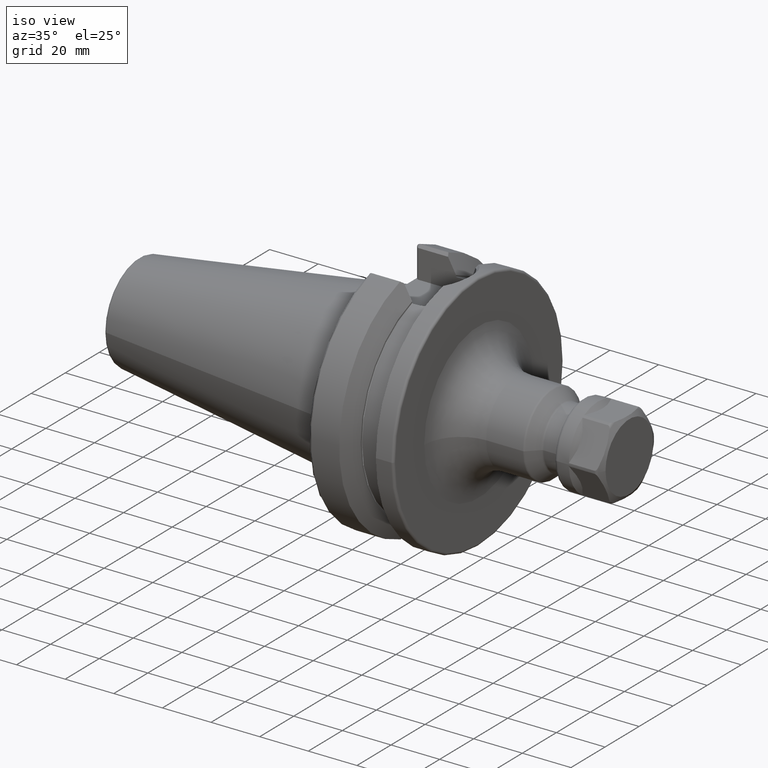
[diagram: clean part render]
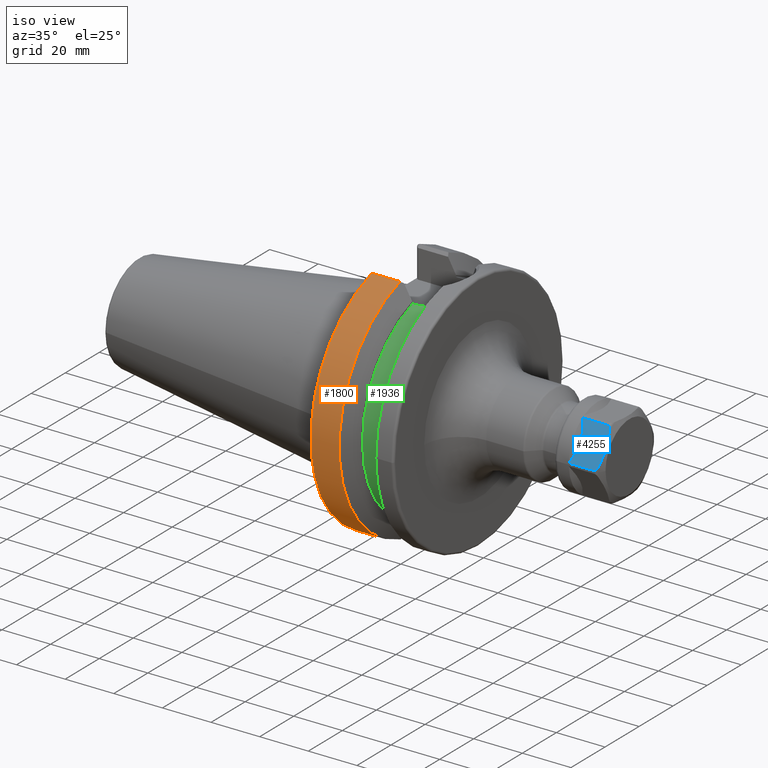
[diagram: same view with three faces highlighted in distinct colors, each labeled with its STEP entity id]
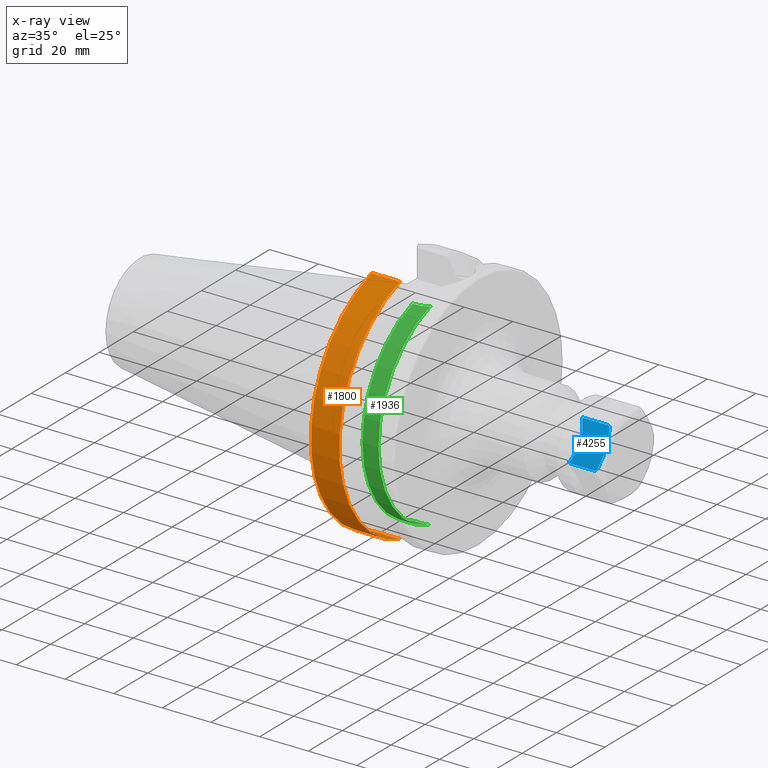
[diagram: x-ray of the same camera — body ghosted, the three highlighted faces saturated]
A machine part, iso view with three faces highlighted in distinct colors.
The next image is the same camera in x-ray (body ghosted, the three faces saturated) — at least one of them is partly hidden behind the body in this view.
Their STEP definitions:

[orange] entity #1800 — the highlighted cylindrical surface (partial cylindrical patch) has radius 49.9875 mm, axis along (1, 0, 0).
#209=CARTESIAN_POINT('',(1.566933176383E1,0.E0,0.E0));
#210=DIRECTION('',(1.E0,0.E0,0.E0));
#211=DIRECTION('',(0.E0,-2.837968869610E-1,9.588844179312E-1));
#212=AXIS2_PLACEMENT_3D('',#209,#210,#211);
#214=DIRECTION('',(1.E0,-7.302338068593E-8,9.708531994237E-8));
#215=VECTOR('',#214,1.166933176412E1);
#216=CARTESIAN_POINT('',(3.999999999701E0,-1.386327248661E1,-4.802665840350E1));
#217=LINE('',#216,#215);
#218=CARTESIAN_POINT('',(4.E0,0.E0,0.E0));
#219=DIRECTION('',(-1.E0,0.E0,0.E0));
#220=DIRECTION('',(0.E0,-2.773348004750E-1,-9.607733387462E-1));
#221=AXIS2_PLACEMENT_3D('',#218,#219,#220);
#223=DIRECTION('',(-9.999999999989E-1,8.887251744650E-7,1.189757232592E-6));
#224=VECTOR('',#223,1.166933177277E1);
#225=CARTESIAN_POINT('',(1.566933176383E1,-1.418629688696E1,4.793223484134E1));
#226=LINE('',#225,#224);
#603=CARTESIAN_POINT('',(3.999999999701E0,-1.386327248661E1,-4.802665840350E1));
#1394=CARTESIAN_POINT('',(1.566933176383E1,-1.418629688696E1,4.793223484134E1));
#1395=CARTESIAN_POINT('',(1.566933176383E1,-1.386327333875E1,
-4.802665727057E1));
#1396=VERTEX_POINT('',#1394);
#1397=VERTEX_POINT('',#1395);
#1410=CARTESIAN_POINT('',(4.E0,-1.418631682991E1,4.793222893890E1));
#1411=VERTEX_POINT('',#1410);
#1432=VERTEX_POINT('',#603);
#1786=CARTESIAN_POINT('',(-1.0879E2,0.E0,0.E0));
#1787=DIRECTION('',(1.E0,0.E0,0.E0));
#1788=DIRECTION('',(0.E0,-1.E0,0.E0));
#1789=AXIS2_PLACEMENT_3D('',#1786,#1787,#1788);
#1790=CYLINDRICAL_SURFACE('',#1789,4.99875E1);
#1791=ORIENTED_EDGE('',*,*,#1777,.T.);
#1793=ORIENTED_EDGE('',*,*,#1792,.F.);
#1795=ORIENTED_EDGE('',*,*,#1794,.T.);
#1797=ORIENTED_EDGE('',*,*,#1796,.F.);
#1798=EDGE_LOOP('',(#1791,#1793,#1795,#1797));
#1799=FACE_OUTER_BOUND('',#1798,.F.);
#1800=ADVANCED_FACE('',(#1799),#1790,.T.);
#213=CIRCLE('',#212,4.99875E1);
#222=CIRCLE('',#221,4.99875E1);
#1777=EDGE_CURVE('',#1396,#1397,#213,.T.);
#1792=EDGE_CURVE('',#1432,#1397,#217,.T.);
#1794=EDGE_CURVE('',#1432,#1411,#222,.T.);
#1796=EDGE_CURVE('',#1396,#1411,#226,.T.);

[blue] entity #4255 — the highlighted planar face has unit normal (0, 0.866, -0.5).
#3578=CARTESIAN_POINT('',(1.762879311067E1,-1.627445722062E1,1.811813228277E0));
#3579=CARTESIAN_POINT('',(1.760135930288E1,-1.633368900493E1,1.709220768439E0));
#3580=CARTESIAN_POINT('',(1.753829156841E1,-1.645016226804E1,1.507483158997E0));
#3581=CARTESIAN_POINT('',(1.740404374214E1,-1.662460489838E1,1.205339660241E0));
#3582=CARTESIAN_POINT('',(1.723276370862E1,-1.677685693130E1,
9.416314036774E-1));
#3583=CARTESIAN_POINT('',(1.702726259196E1,-1.689631751599E1,
7.347196014845E-1));
#3584=CARTESIAN_POINT('',(1.679442486846E1,-1.697258284358E1,
6.026241792443E-1));
#3585=CARTESIAN_POINT('',(1.663092243804E1,-1.699038105677E1,
5.717967697245E-1));
#3586=CARTESIAN_POINT('',(1.654626135594E1,-1.699038105677E1,
5.717967697245E-1));
#3588=CARTESIAN_POINT('',(1.654626135594E1,-8.990381056767E0,1.442820323028E1));
#3589=CARTESIAN_POINT('',(1.663133375969E1,-8.990381056767E0,1.442820323028E1));
#3590=CARTESIAN_POINT('',(1.679554974256E1,-9.008319998068E0,1.439713207251E1));
#3591=CARTESIAN_POINT('',(1.702967586056E1,-9.085449864247E0,1.426353922550E1));
#3592=CARTESIAN_POINT('',(1.723504960512E1,-9.205598196371E0,1.405543620982E1));
#3593=CARTESIAN_POINT('',(1.740538646210E1,-9.357706797040E0,1.379197638519E1));
#3594=CARTESIAN_POINT('',(1.753869894456E1,-9.531335419002E0,1.349124279031E1));
#3595=CARTESIAN_POINT('',(1.760147975856E1,-9.647333182045E0,1.329032877115E1));
#3596=CARTESIAN_POINT('',(1.762879311067E1,-9.706304892912E0,1.318818677172E1));
#3710=CARTESIAN_POINT('',(1.762879311067E1,-9.706304892912E0,1.318818677172E1));
#3711=CARTESIAN_POINT('',(1.783518476881E1,-1.015192098345E1,1.241635706224E1));
#3712=CARTESIAN_POINT('',(1.817379271881E1,-1.103673598687E1,1.088381252102E1));
#3713=CARTESIAN_POINT('',(1.843326934202E1,-1.233775072113E1,8.630388899882E0));
#3714=CARTESIAN_POINT('',(1.843317407038E1,-1.364378086319E1,6.368278337620E0));
#3715=CARTESIAN_POINT('',(1.817365600931E1,-1.494440287302E1,4.115534935150E0));
#3716=CARTESIAN_POINT('',(1.783512110256E1,-1.582897859061E1,2.583404849145E0));
#3717=CARTESIAN_POINT('',(1.762879311067E1,-1.627445722062E1,1.811813228277E0));
#3762=CARTESIAN_POINT('',(6.010094158031E0,-1.699038105677E1,
5.717967697245E-1));
#3763=CARTESIAN_POINT('',(6.248860555610E0,-1.673667885002E1,1.011221881794E0));
#3764=CARTESIAN_POINT('',(6.673359230126E0,-1.624777384717E1,1.858030186861E0));
#3765=CARTESIAN_POINT('',(7.159540054751E0,-1.557555148035E1,3.022353479931E0));
#3766=CARTESIAN_POINT('',(7.516204356980E0,-1.495849455715E1,4.091127423007E0));
#3767=CARTESIAN_POINT('',(7.761855355127E0,-1.439387284035E1,5.069080920115E0));
#3768=CARTESIAN_POINT('',(7.915629503835E0,-1.387929474987E1,5.960356330146E0));
#3769=CARTESIAN_POINT('',(7.995386678839E0,-1.340806650550E1,6.776547543349E0));
#3770=CARTESIAN_POINT('',(8.017308964701E0,-1.298987968061E1,7.500868550285E0));
#3771=CARTESIAN_POINT('',(7.995278378694E0,-1.257168644043E1,8.225199820986E0));
#3772=CARTESIAN_POINT('',(7.915368412529E0,-1.210033937944E1,9.041599374128E0));
#3773=CARTESIAN_POINT('',(7.761438829086E0,-1.158574052652E1,9.932901419567E0));
#3774=CARTESIAN_POINT('',(7.515627757615E0,-1.102116525029E1,1.091080924048E1));
#3775=CARTESIAN_POINT('',(7.158946891423E0,-1.040420428591E1,1.197928725927E1));
#3776=CARTESIAN_POINT('',(6.672584733473E0,-9.732360887253E0,1.314343827394E1));
#3777=CARTESIAN_POINT('',(6.248870550518E0,-9.243433178603E0,1.398908141583E1));
#3778=CARTESIAN_POINT('',(6.010360585267E0,-8.990019908330E0,1.442800607525E1));
#3780=DIRECTION('',(9.999999992374E-1,-3.427788888926E-5,1.871268806668E-5));
#3781=VECTOR('',#3780,1.053590077871E1);
#3782=CARTESIAN_POINT('',(6.010360585267E0,-8.990019908330E0,1.442800607525E1));
#3783=LINE('',#3782,#3781);
#3784=DIRECTION('',(-1.E0,0.E0,0.E0));
#3785=VECTOR('',#3784,1.053616719791E1);
#3786=CARTESIAN_POINT('',(1.654626135594E1,-1.699038105677E1,
5.717967697245E-1));
#3787=LINE('',#3786,#3785);
#3920=VERTEX_POINT('',#3710);
#3921=VERTEX_POINT('',#3717);
#3932=VERTEX_POINT('',#3586);
#3933=VERTEX_POINT('',#3588);
#3944=CARTESIAN_POINT('',(6.010022197914E0,-1.699045297670E1,
5.717991917679E-1));
#3945=CARTESIAN_POINT('',(6.010022197914E0,-8.990424116186E0,1.442827233047E1));
#3946=VERTEX_POINT('',#3944);
#3947=VERTEX_POINT('',#3945);
#4239=CARTESIAN_POINT('',(1.9E1,-1.732050807569E1,0.E0));
#4240=DIRECTION('',(0.E0,8.660254037844E-1,-5.E-1));
#4241=DIRECTION('',(0.E0,5.E-1,8.660254037844E-1));
#4242=AXIS2_PLACEMENT_3D('',#4239,#4240,#4241);
#4243=PLANE('',#4242);
#4245=ORIENTED_EDGE('',*,*,#4244,.T.);
#4247=ORIENTED_EDGE('',*,*,#4246,.T.);
#4248=ORIENTED_EDGE('',*,*,#4123,.T.);
#4249=ORIENTED_EDGE('',*,*,#4223,.T.);
#4250=ORIENTED_EDGE('',*,*,#4113,.T.);
#4252=ORIENTED_EDGE('',*,*,#4251,.T.);
#4253=EDGE_LOOP('',(#4245,#4247,#4248,#4249,#4250,#4252));
#4254=FACE_OUTER_BOUND('',#4253,.F.);
#4255=ADVANCED_FACE('',(#4254),#4243,.F.);
#3587=B_SPLINE_CURVE_WITH_KNOTS('',3,(#3578,#3579,#3580,#3581,#3582,#3583,#3584,
#3585,#3586),.UNSPECIFIED.,.F.,.F.,(4,1,1,1,1,1,4),(0.E0,1.666666666667E-1,
3.333333333333E-1,5.E-1,6.666666666667E-1,8.333333333333E-1,1.E0),
.UNSPECIFIED.);
#3597=B_SPLINE_CURVE_WITH_KNOTS('',3,(#3588,#3589,#3590,#3591,#3592,#3593,#3594,
#3595,#3596),.UNSPECIFIED.,.F.,.F.,(4,1,1,1,1,1,4),(0.E0,1.666666666667E-1,
3.333333333333E-1,5.E-1,6.666666666667E-1,8.333333333333E-1,1.E0),
.UNSPECIFIED.);
#3718=B_SPLINE_CURVE_WITH_KNOTS('',3,(#3710,#3711,#3712,#3713,#3714,#3715,#3716,
#3717),.UNSPECIFIED.,.F.,.F.,(4,1,1,1,1,4),(0.E0,2.E-1,4.E-1,6.E-1,8.E-1,1.E0),
.UNSPECIFIED.);
#3779=B_SPLINE_CURVE_WITH_KNOTS('',3,(#3762,#3763,#3764,#3765,#3766,#3767,#3768,
#3769,#3770,#3771,#3772,#3773,#3774,#3775,#3776,#3777,#3778),.UNSPECIFIED.,.F.,
.F.,(4,1,1,1,1,1,1,1,1,1,1,1,1,1,4),(0.E0,7.142857142857E-2,1.428571428571E-1,
2.142857142857E-1,2.857142857143E-1,3.571428571429E-1,4.285714285714E-1,5.E-1,
5.714285714286E-1,6.428571428571E-1,7.142857142857E-1,7.857142857143E-1,
8.571428571429E-1,9.285714285714E-1,1.E0),.UNSPECIFIED.);
#4113=EDGE_CURVE('',#3921,#3932,#3587,.T.);
#4123=EDGE_CURVE('',#3933,#3920,#3597,.T.);
#4223=EDGE_CURVE('',#3920,#3921,#3718,.T.);
#4244=EDGE_CURVE('',#3946,#3947,#3779,.T.);
#4246=EDGE_CURVE('',#3947,#3933,#3783,.T.);
#4251=EDGE_CURVE('',#3932,#3946,#3787,.T.);

[green] entity #1936 — the highlighted cylindrical surface (partial cylindrical patch) has radius 42.375 mm, axis along (1, 0, 0).
#308=DIRECTION('',(1.E0,0.E0,0.E0));
#309=VECTOR('',#308,1.435E0);
#310=CARTESIAN_POINT('',(1.99125E1,-1.29025E1,-4.036293000700E1));
#311=LINE('',#310,#309);
#368=CARTESIAN_POINT('',(2.64875E1,-1.183447955129E1,-4.068888937720E1));
#369=CARTESIAN_POINT('',(2.593767013313E1,-1.207328392824E1,-4.061943244291E1));
#370=CARTESIAN_POINT('',(2.482251458205E1,-1.246756636174E1,-4.050035379603E1));
#371=CARTESIAN_POINT('',(2.309259987910E1,-1.282394305606E1,-4.038817378858E1));
#372=CARTESIAN_POINT('',(2.193211835188E1,-1.29025E1,-4.036293000700E1));
#373=CARTESIAN_POINT('',(2.13475E1,-1.29025E1,-4.036293000700E1));
#375=CARTESIAN_POINT('',(1.99125E1,0.E0,0.E0));
#376=DIRECTION('',(-1.E0,0.E0,0.E0));
#377=DIRECTION('',(0.E0,-3.044837758112E-1,-9.525175222891E-1));
#378=AXIS2_PLACEMENT_3D('',#375,#376,#377);
#380=CARTESIAN_POINT('',(2.13475E1,-1.29025E1,4.036293000700E1));
#381=CARTESIAN_POINT('',(2.193211835188E1,-1.29025E1,4.036293000700E1));
#382=CARTESIAN_POINT('',(2.309259987910E1,-1.282394305606E1,4.038817378858E1));
#383=CARTESIAN_POINT('',(2.482251458205E1,-1.246756636174E1,4.050035379603E1));
#384=CARTESIAN_POINT('',(2.593767013313E1,-1.207328392824E1,4.061943244291E1));
#385=CARTESIAN_POINT('',(2.64875E1,-1.183447955129E1,4.068888937720E1));
#463=CARTESIAN_POINT('',(2.64875E1,0.E0,0.E0));
#464=DIRECTION('',(-1.E0,0.E0,0.E0));
#465=DIRECTION('',(0.E0,-2.792797534229E-1,-9.602097788130E-1));
#466=AXIS2_PLACEMENT_3D('',#463,#464,#465);
#548=DIRECTION('',(1.E0,0.E0,0.E0));
#549=VECTOR('',#548,1.435E0);
#550=CARTESIAN_POINT('',(1.99125E1,-1.29025E1,4.036293000700E1));
#551=LINE('',#550,#549);
#1240=CARTESIAN_POINT('',(1.99125E1,-1.29025E1,-4.036293000700E1));
#1241=CARTESIAN_POINT('',(1.99125E1,-1.29025E1,4.036293000700E1));
#1242=VERTEX_POINT('',#1240);
#1243=VERTEX_POINT('',#1241);
#1252=CARTESIAN_POINT('',(2.64875E1,-1.183447955129E1,-4.068888937720E1));
#1253=CARTESIAN_POINT('',(2.64875E1,-1.183447955129E1,4.068888937720E1));
#1254=VERTEX_POINT('',#1252);
#1255=VERTEX_POINT('',#1253);
#1381=CARTESIAN_POINT('',(2.13475E1,-1.29025E1,4.036293000700E1));
#1382=VERTEX_POINT('',#1381);
#1389=CARTESIAN_POINT('',(2.13475E1,-1.29025E1,-4.036293000700E1));
#1390=VERTEX_POINT('',#1389);
#1919=CARTESIAN_POINT('',(1.491626494021E1,0.E0,0.E0));
#1920=DIRECTION('',(1.E0,0.E0,0.E0));
#1921=DIRECTION('',(0.E0,-1.E0,0.E0));
#1922=AXIS2_PLACEMENT_3D('',#1919,#1920,#1921);
#1923=CYLINDRICAL_SURFACE('',#1922,4.2375E1);
#1925=ORIENTED_EDGE('',*,*,#1924,.T.);
#1926=ORIENTED_EDGE('',*,*,#1858,.F.);
#1927=ORIENTED_EDGE('',*,*,#1892,.T.);
#1929=ORIENTED_EDGE('',*,*,#1928,.T.);
#1931=ORIENTED_EDGE('',*,*,#1930,.T.);
#1933=ORIENTED_EDGE('',*,*,#1932,.F.);
#1934=EDGE_LOOP('',(#1925,#1926,#1927,#1929,#1931,#1933));
#1935=FACE_OUTER_BOUND('',#1934,.F.);
#1936=ADVANCED_FACE('',(#1935),#1923,.T.);
#374=B_SPLINE_CURVE_WITH_KNOTS('',3,(#368,#369,#370,#371,#372,#373),
.UNSPECIFIED.,.F.,.F.,(4,1,1,4),(0.E0,3.333333333333E-1,6.666666666667E-1,1.E0),
.UNSPECIFIED.);
#379=CIRCLE('',#378,4.2375E1);
#386=B_SPLINE_CURVE_WITH_KNOTS('',3,(#380,#381,#382,#383,#384,#385),
.UNSPECIFIED.,.F.,.F.,(4,1,1,4),(0.E0,3.333333333333E-1,6.666666666667E-1,1.E0),
.UNSPECIFIED.);
#467=CIRCLE('',#466,4.2375E1);
#1858=EDGE_CURVE('',#1242,#1390,#311,.T.);
#1892=EDGE_CURVE('',#1242,#1243,#379,.T.);
#1924=EDGE_CURVE('',#1254,#1390,#374,.T.);
#1928=EDGE_CURVE('',#1243,#1382,#551,.T.);
#1930=EDGE_CURVE('',#1382,#1255,#386,.T.);
#1932=EDGE_CURVE('',#1254,#1255,#467,.T.);